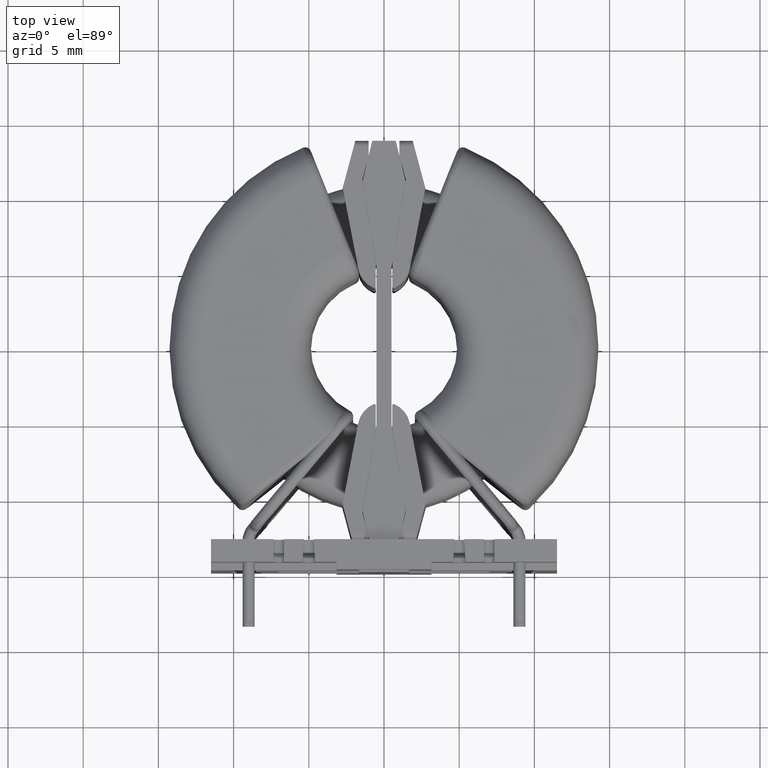
[diagram: clean part render]
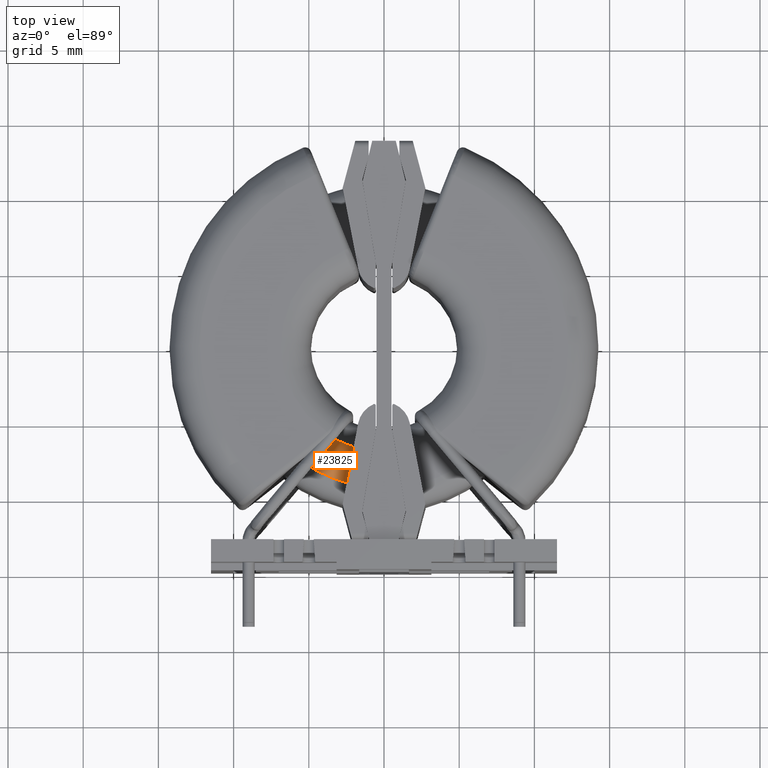
[diagram: same view with one face highlighted and labeled with its STEP entity id]
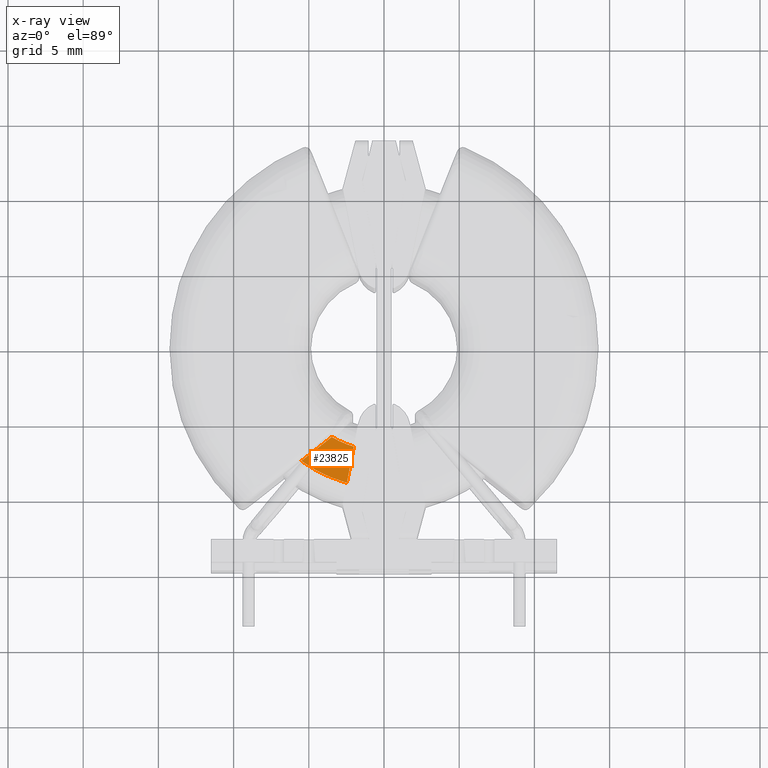
[diagram: x-ray of the same camera — body ghosted, the highlighted face saturated]
A machine part, top view. The second image highlights one B-rep face of the part: STEP entity #23825.
The next image is the same camera in x-ray: the body ghosted, the highlighted face saturated — about 0% of this face is hidden behind the body in this view.
In plain terms, the highlighted planar face has unit normal (0, 0, -1).
Its self-contained STEP definition (entity closure, byte-faithful):
#268 = CIRCLE ( 'NONE', #4887, 9.369999999999999218 ) ;
#3330 = VECTOR ( 'NONE', #10596, 1000.000000000000000 ) ;
#4234 = VERTEX_POINT ( 'NONE', #4633 ) ;
#4633 = CARTESIAN_POINT ( 'NONE',  ( -2.466608851438861993, -9.039509985281473092, 6.519999999999999574 ) ) ;
#4887 = AXIS2_PLACEMENT_3D ( 'NONE', #23728, #17539, #9107 ) ;
#4940 = PLANE ( 'NONE',  #19680 ) ;
#7895 = LINE ( 'NONE', #8751, #3330 ) ;
#8744 = LINE ( 'NONE', #11309, #26514 ) ;
#8751 = CARTESIAN_POINT ( 'NONE',  ( -0.7060618425353133443, 0.1354829452607557994, 6.519999999999999574 ) ) ;
#9107 = DIRECTION ( 'NONE',  ( 0.0000000000000000000, 1.000000000000000000, 0.0000000000000000000 ) ) ;
#9242 = CIRCLE ( 'NONE', #23169, 6.930000000000000604 ) ;
#9292 = DIRECTION ( 'NONE',  ( -0.7840057544486430663, -0.6207535557621993716, 0.0000000000000000000 ) ) ;
#10596 = DIRECTION ( 'NONE',  ( 0.1884474237582201561, 0.9820832798082298476, 0.0000000000000000000 ) ) ;
#11144 = CARTESIAN_POINT ( 'NONE',  ( -2.004955735084522850, -6.633630416321947720, 6.519999999999999574 ) ) ;
#11309 = CARTESIAN_POINT ( 'NONE',  ( 2.629190268277348252E-15, -3.239198298932031594, 6.520000000000001350 ) ) ;
#11931 = CARTESIAN_POINT ( 'NONE',  ( 0.0000000000000000000, 0.0000000000000000000, 6.519999999999999574 ) ) ;
#12604 = ORIENTED_EDGE ( 'NONE', *, *, #18687, .T. ) ;
#14087 = VERTEX_POINT ( 'NONE', #11144 ) ;
#14121 = DIRECTION ( 'NONE',  ( 0.0000000000000000000, 0.0000000000000000000, -1.000000000000000000 ) ) ;
#14939 = EDGE_LOOP ( 'NONE', ( #18970, #24085, #22123, #12604 ) ) ;
#17539 = DIRECTION ( 'NONE',  ( -0.0000000000000000000, -0.0000000000000000000, 1.000000000000000000 ) ) ;
#18687 = EDGE_CURVE ( 'NONE', #4234, #14087, #7895, .T. ) ;
#18936 = CARTESIAN_POINT ( 'NONE',  ( -5.494740205066535488, -7.589777999311007051, 6.520000000000000462 ) ) ;
#18970 = ORIENTED_EDGE ( 'NONE', *, *, #21536, .T. ) ;
#19680 = AXIS2_PLACEMENT_3D ( 'NONE', #19818, #19912, #20092 ) ;
#19818 = CARTESIAN_POINT ( 'NONE',  ( 0.0000000000000000000, 0.0000000000000000000, 6.519999999999999574 ) ) ;
#19912 = DIRECTION ( 'NONE',  ( 0.0000000000000000000, 0.0000000000000000000, -1.000000000000000000 ) ) ;
#19999 = EDGE_CURVE ( 'NONE', #24859, #4234, #268, .T. ) ;
#20092 = DIRECTION ( 'NONE',  ( 0.0000000000000000000, 1.000000000000000000, 0.0000000000000000000 ) ) ;
#20179 = EDGE_CURVE ( 'NONE', #26455, #24859, #8744, .T. ) ;
#20860 = FACE_OUTER_BOUND ( 'NONE', #14939, .T. ) ;
#21536 = EDGE_CURVE ( 'NONE', #14087, #26455, #9242, .T. ) ;
#22123 = ORIENTED_EDGE ( 'NONE', *, *, #19999, .T. ) ;
#23169 = AXIS2_PLACEMENT_3D ( 'NONE', #11931, #14121, #24289 ) ;
#23728 = CARTESIAN_POINT ( 'NONE',  ( 0.0000000000000000000, 0.0000000000000000000, 6.519999999999999574 ) ) ;
#23825 = ADVANCED_FACE ( 'NONE', ( #20860 ), #4940, .F. ) ;
#24085 = ORIENTED_EDGE ( 'NONE', *, *, #20179, .T. ) ;
#24289 = DIRECTION ( 'NONE',  ( 0.0000000000000000000, 1.000000000000000000, 0.0000000000000000000 ) ) ;
#24838 = CARTESIAN_POINT ( 'NONE',  ( -3.478766332457553290, -5.993586973103822935, 6.519999999999999574 ) ) ;
#24859 = VERTEX_POINT ( 'NONE', #18936 ) ;
#26455 = VERTEX_POINT ( 'NONE', #24838 ) ;
#26514 = VECTOR ( 'NONE', #9292, 1000.000000000000114 ) ;